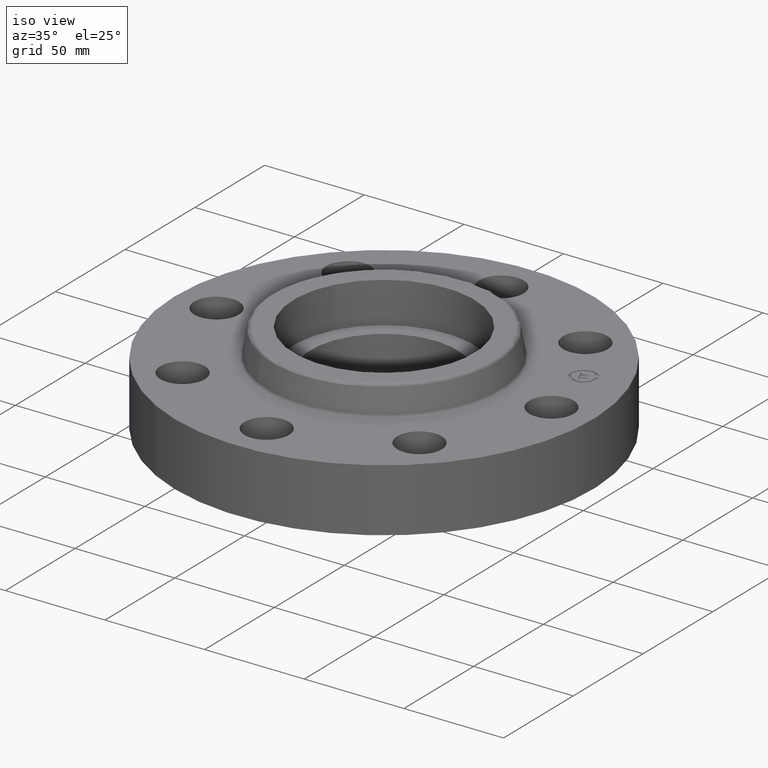
[diagram: clean part render]
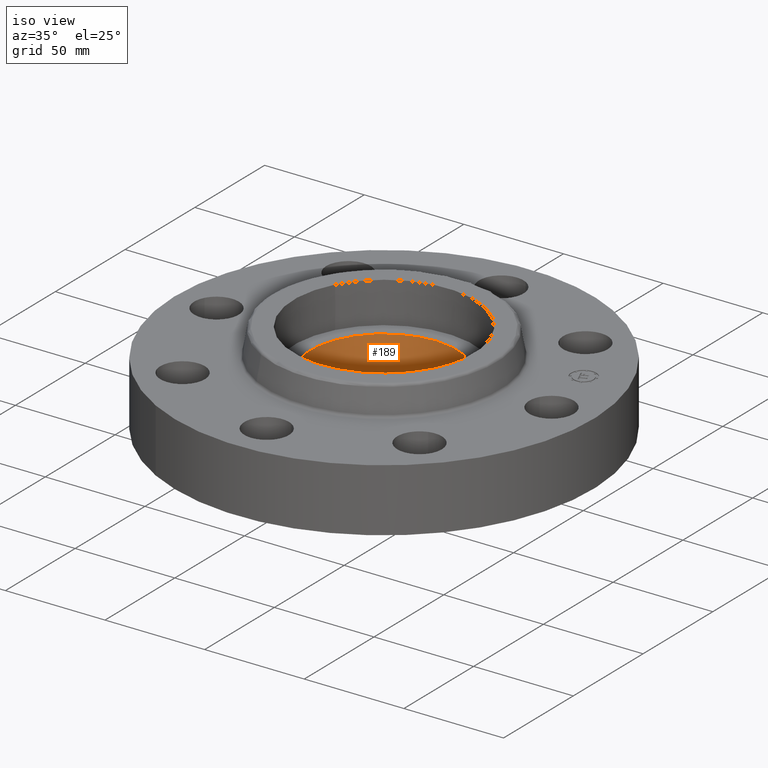
[diagram: same view with one face highlighted and labeled with its STEP entity id]
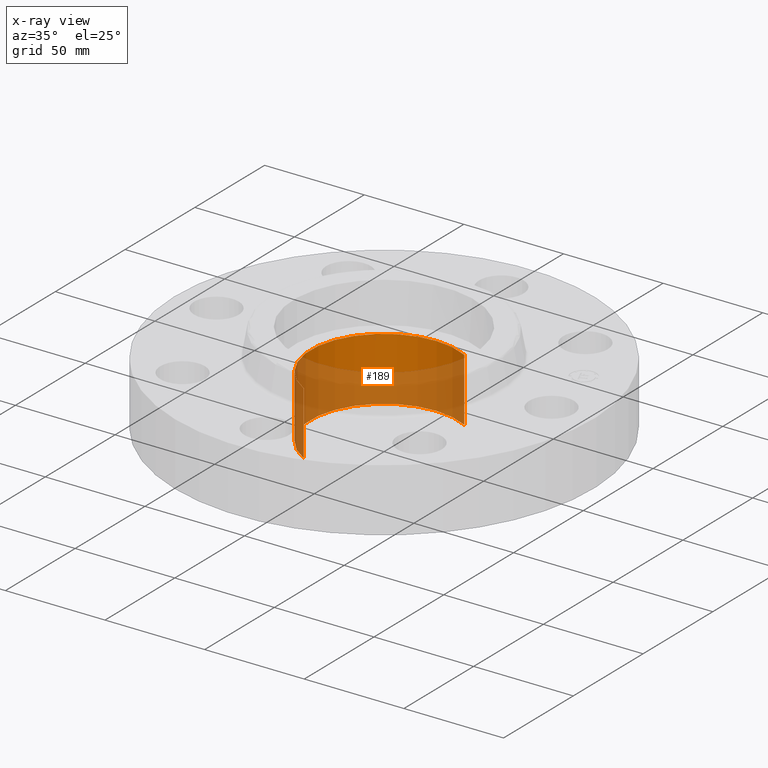
[diagram: x-ray of the same camera — body ghosted, the highlighted face saturated]
A machine part, iso view. The second image highlights one B-rep face of the part: STEP entity #189.
The next image is the same camera in x-ray: the body ghosted, the highlighted face saturated — about 63% of this face is hidden behind the body in this view.
In plain terms, the highlighted cylindrical surface (partial cylindrical patch) has radius 36.83 mm, axis along (-0, 0, -1).
Its self-contained STEP definition (entity closure, byte-faithful):
#60=AXIS2_PLACEMENT_3D('Circle Axis2P3D',#58,#59,$) ;
#162=AXIS2_PLACEMENT_3D('Cylinder Axis2P3D',#159,#160,#161) ;
#173=AXIS2_PLACEMENT_3D('Circle Axis2P3D',#171,#172,$) ;
#58=CARTESIAN_POINT('Axis2P3D Location',(1.39870617276E-016,3.84644197508E-016,1.)) ;
#62=CARTESIAN_POINT('Vertex',(-0.695167030978,-1.27249471477,1.)) ;
#64=CARTESIAN_POINT('Vertex',(0.695167030978,1.27249471477,1.)) ;
#159=CARTESIAN_POINT('Axis2P3D Location',(0.,0.,0.780000000003)) ;
#164=CARTESIAN_POINT('Line Origine',(-0.695167030981,-1.27249471475,0.374999999984)) ;
#168=CARTESIAN_POINT('Vertex',(-0.695167030981,-1.27249471475,-0.250000000016)) ;
#171=CARTESIAN_POINT('Axis2P3D Location',(0.,0.,-0.250000000016)) ;
#175=CARTESIAN_POINT('Vertex',(0.695167030978,1.27249471477,-0.250000000001)) ;
#178=CARTESIAN_POINT('Line Origine',(0.695167030981,1.27249471475,0.374999999984)) ;
#59=DIRECTION('Axis2P3D Direction',(0.,0.,-0.0393700787402)) ;
#160=DIRECTION('Axis2P3D Direction',(-0.,0.,-0.0393700787402)) ;
#161=DIRECTION('Axis2P3D XDirection',(-0.0188750212048,-0.0345504945626,0.)) ;
#165=DIRECTION('Vector Direction',(0.,0.,-0.0393700787402)) ;
#172=DIRECTION('Axis2P3D Direction',(-0.,0.,-0.0393700787402)) ;
#179=DIRECTION('Vector Direction',(0.,0.,-0.0393700787402)) ;
#166=VECTOR('Line Direction',#165,0.0393700787402) ;
#180=VECTOR('Line Direction',#179,0.0393700787402) ;
#184=ORIENTED_EDGE('',*,*,#170,.T.) ;
#185=ORIENTED_EDGE('',*,*,#177,.T.) ;
#186=ORIENTED_EDGE('',*,*,#182,.F.) ;
#187=ORIENTED_EDGE('',*,*,#66,.F.) ;
#189=ADVANCED_FACE('PartBody',(#188),#163,.F.) ;
#61=CIRCLE('generated circle',#60,1.45000000002) ;
#174=CIRCLE('generated circle',#173,1.45000000001) ;
#163=CYLINDRICAL_SURFACE('generated cylinder',#162,1.45000000001) ;
#66=EDGE_CURVE('',#63,#65,#61,.T.) ;
#170=EDGE_CURVE('',#63,#169,#167,.T.) ;
#177=EDGE_CURVE('',#169,#176,#174,.T.) ;
#182=EDGE_CURVE('',#65,#176,#181,.T.) ;
#183=EDGE_LOOP('',(#184,#185,#186,#187)) ;
#188=FACE_OUTER_BOUND('',#183,.T.) ;
#167=LINE('Line',#164,#166) ;
#181=LINE('Line',#178,#180) ;
#63=VERTEX_POINT('',#62) ;
#65=VERTEX_POINT('',#64) ;
#169=VERTEX_POINT('',#168) ;
#176=VERTEX_POINT('',#175) ;